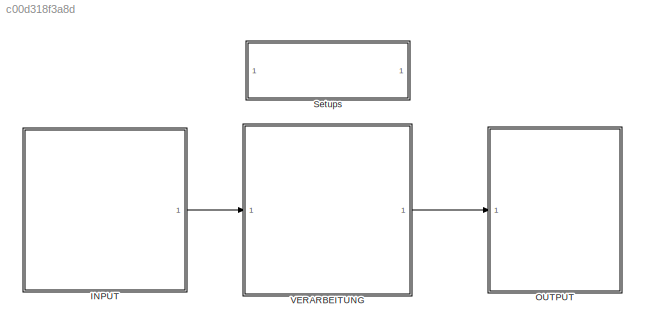
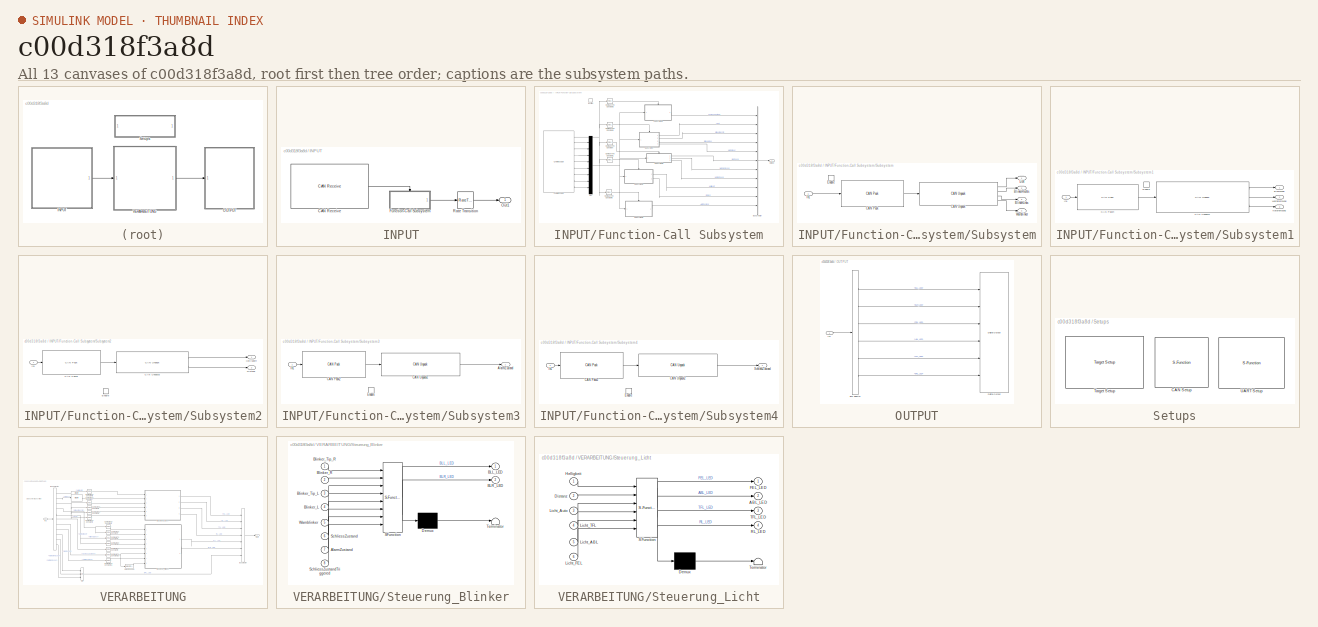
[diagram: thumbnail index - all 13 canvases of the model, root first then tree order]
MODEL slx_c00d318f3a8d
KIND model
CONFIG AbsTol = auto
CONFIG EnableMultiTasking = off
CONFIG FixedStep = auto
CONFIG MaxStep = auto
CONFIG MinStep = auto
CONFIG PreLoadFcn = waijung.modelPreload; % Required for working with Waijung Blockset. Do not remove.
CONFIG RelTol = 1e-3
CONFIG SampleTimeConstraint = Unconstrained
CONFIG Solver = FixedStepAuto
CONFIG SolverName = FixedStepAuto
CONFIG StartTime = 0.0
CONFIG StopTime = 10.0
BLOCK [SubSystem] INPUT
  Ports = [0, 1]
  RequestExecContextInheritance = off
BLOCK [Reference] INPUT/CAN Receive  REF=stm32f4_canbus_lib/CAN Receive
  Ports = [0, 1]
  SourceBlock = stm32f4_canbus_lib/CAN Receive
  SourceProductName = Waijung Blockset
  SourceType = stm32f4_can
BLOCK [SubSystem] INPUT/Function-Call Subsystem
  Ports = [0, 1, 0, 1]
  RequestExecContextInheritance = off
  TreatAsAtomicUnit = on
BLOCK [BusCreator] INPUT/Function-Call Subsystem/Bus Creator
  DisplayOption = bar
  InheritFromInputs = on
  Inputs = 11
  Ports = [11, 1]
BLOCK [Reference] INPUT/Function-Call Subsystem/CAN Message  REF=stm32f4_canbus_lib/CAN Message
  Ports = [0, 9]
  SourceBlock = stm32f4_canbus_lib/CAN Message
  SourceProductName = Waijung Blockset
  SourceType = stm32f4_can
BLOCK [Reference] INPUT/Function-Call Subsystem/Compare To Constant  REF=simulink/Logic and Bit
Operations/Compare
To Constant
  Ports = [1, 1]
  SourceBlock = simulink/Logic and Bit\nOperations/Compare\nTo Constant
  SourceProductBaseCode = SL
  SourceProductName = Simulink
  SourceType = Compare To Constant
BLOCK [Reference] INPUT/Function-Call Subsystem/Compare To Constant1  REF=simulink/Logic and Bit
Operations/Compare
To Constant
  Ports = [1, 1]
  SourceBlock = simulink/Logic and Bit\nOperations/Compare\nTo Constant
  SourceProductBaseCode = SL
  SourceProductName = Simulink
  SourceType = Compare To Constant
BLOCK [Reference] INPUT/Function-Call Subsystem/Compare To Constant3  REF=simulink/Logic and Bit
Operations/Compare
To Constant
  Ports = [1, 1]
  SourceBlock = simulink/Logic and Bit\nOperations/Compare\nTo Constant
  SourceProductBaseCode = SL
  SourceProductName = Simulink
  SourceType = Compare To Constant
BLOCK [Reference] INPUT/Function-Call Subsystem/Compare To Constant4  REF=simulink/Logic and Bit
Operations/Compare
To Constant
  Ports = [1, 1]
  SourceBlock = simulink/Logic and Bit\nOperations/Compare\nTo Constant
  SourceProductBaseCode = SL
  SourceProductName = Simulink
  SourceType = Compare To Constant
BLOCK [Reference] INPUT/Function-Call Subsystem/Compare To Constant5  REF=simulink/Logic and Bit
Operations/Compare
To Constant
  Ports = [1, 1]
  SourceBlock = simulink/Logic and Bit\nOperations/Compare\nTo Constant
  SourceProductBaseCode = SL
  SourceProductName = Simulink
  SourceType = Compare To Constant
BLOCK [Mux] INPUT/Function-Call Subsystem/Mux
  DisplayOption = bar
  Inputs = 8
  Ports = [8, 1]
BLOCK [Outport] INPUT/Function-Call Subsystem/Output
  IconDisplay = Port number
  VectorParamsAs1DForOutWhenUnconnected = off
BLOCK [SubSystem] INPUT/Function-Call Subsystem/Subsystem
  Ports = [1, 4, 1]
  RequestExecContextInheritance = off
BLOCK [Outport] INPUT/Function-Call Subsystem/Subsystem/BlinkerLinks
  IconDisplay = Port number
  Port = 3
  VectorParamsAs1DForOutWhenUnconnected = off
BLOCK [Outport] INPUT/Function-Call Subsystem/Subsystem/BlinkerRechts
  IconDisplay = Port number
  Port = 2
  VectorParamsAs1DForOutWhenUnconnected = off
BLOCK [Reference] INPUT/Function-Call Subsystem/Subsystem/CAN Pack  REF=canmsglib/CAN Pack
  Ports = [1, 1]
  SourceBlock = canmsglib/CAN Pack
  SourceProductBaseCode = XP
  SourceProductName = Simulink Real-Time
  SourceType = CAN Pack
BLOCK [Reference] INPUT/Function-Call Subsystem/Subsystem/CAN Unpack  REF=canmsglib/CAN Unpack
  Ports = [1, 4]
  SourceBlock = canmsglib/CAN Unpack
  SourceProductBaseCode = XP
  SourceProductName = Simulink Real-Time
  SourceType = CAN Unpack
BLOCK [EnablePort] INPUT/Function-Call Subsystem/Subsystem/Enable
  Ports = []
BLOCK [Inport] INPUT/Function-Call Subsystem/Subsystem/In1
  IconDisplay = Port number
BLOCK [Outport] INPUT/Function-Call Subsystem/Subsystem/Licht
  IconDisplay = Port number
  VectorParamsAs1DForOutWhenUnconnected = off
BLOCK [Outport] INPUT/Function-Call Subsystem/Subsystem/Warnblinker
  IconDisplay = Port number
  Port = 4
  VectorParamsAs1DForOutWhenUnconnected = off
BLOCK [SubSystem] INPUT/Function-Call Subsystem/Subsystem1
  Ports = [1, 3, 1]
  RequestExecContextInheritance = off
BLOCK [Outport] INPUT/Function-Call Subsystem/Subsystem1/Bremsung
  IconDisplay = Port number
  VectorParamsAs1DForOutWhenUnconnected = off
BLOCK [Reference] INPUT/Function-Call Subsystem/Subsystem1/CAN Pack4  REF=canmsglib/CAN Pack
  Ports = [1, 1]
  SourceBlock = canmsglib/CAN Pack
  SourceProductBaseCode = XP
  SourceProductName = Simulink Real-Time
  SourceType = CAN Pack
BLOCK [Reference] INPUT/Function-Call Subsystem/Subsystem1/CAN Unpack4  REF=canmsglib/CAN Unpack
  Ports = [1, 3]
  SourceBlock = canmsglib/CAN Unpack
  SourceProductBaseCode = XP
  SourceProductName = Simulink Real-Time
  SourceType = CAN Unpack
BLOCK [EnablePort] INPUT/Function-Call Subsystem/Subsystem1/Enable
  Ports = []
BLOCK [Inport] INPUT/Function-Call Subsystem/Subsystem1/In1
  IconDisplay = Port number
BLOCK [Outport] INPUT/Function-Call Subsystem/Subsystem1/Notbremsung
  IconDisplay = Port number
  Port = 3
  VectorParamsAs1DForOutWhenUnconnected = off
BLOCK [Outport] INPUT/Function-Call Subsystem/Subsystem1/Warnbremsung
  IconDisplay = Port number
  Port = 2
  VectorParamsAs1DForOutWhenUnconnected = off
BLOCK [SubSystem] INPUT/Function-Call Subsystem/Subsystem2
  Ports = [1, 2, 1]
  RequestExecContextInheritance = off
BLOCK [Reference] INPUT/Function-Call Subsystem/Subsystem2/CAN Pack3  REF=canmsglib/CAN Pack
  Ports = [1, 1]
  SourceBlock = canmsglib/CAN Pack
  SourceProductBaseCode = XP
  SourceProductName = Simulink Real-Time
  SourceType = CAN Pack
BLOCK [Reference] INPUT/Function-Call Subsystem/Subsystem2/CAN Unpack3  REF=canmsglib/CAN Unpack
  Ports = [1, 2]
  SourceBlock = canmsglib/CAN Unpack
  SourceProductBaseCode = XP
  SourceProductName = Simulink Real-Time
  SourceType = CAN Unpack
BLOCK [Outport] INPUT/Function-Call Subsystem/Subsystem2/Distanz
  IconDisplay = Port number
  Port = 2
  VectorParamsAs1DForOutWhenUnconnected = off
BLOCK [EnablePort] INPUT/Function-Call Subsystem/Subsystem2/Enable
  Ports = []
BLOCK [Outport] INPUT/Function-Call Subsystem/Subsystem2/Helligkeit
  IconDisplay = Port number
  VectorParamsAs1DForOutWhenUnconnected = off
BLOCK [Inport] INPUT/Function-Call Subsystem/Subsystem2/In1
  IconDisplay = Port number
BLOCK [SubSystem] INPUT/Function-Call Subsystem/Subsystem3
  Ports = [1, 1, 1]
  RequestExecContextInheritance = off
BLOCK [Outport] INPUT/Function-Call Subsystem/Subsystem3/AlarmZustand
  IconDisplay = Port number
  VectorParamsAs1DForOutWhenUnconnected = off
BLOCK [Reference] INPUT/Function-Call Subsystem/Subsystem3/CAN Pack2  REF=canmsglib/CAN Pack
  Ports = [1, 1]
  SourceBlock = canmsglib/CAN Pack
  SourceProductBaseCode = XP
  SourceProductName = Simulink Real-Time
  SourceType = CAN Pack
BLOCK [Reference] INPUT/Function-Call Subsystem/Subsystem3/CAN Unpack2  REF=canmsglib/CAN Unpack
  Ports = [1, 1]
  SourceBlock = canmsglib/CAN Unpack
  SourceProductBaseCode = XP
  SourceProductName = Simulink Real-Time
  SourceType = CAN Unpack
BLOCK [EnablePort] INPUT/Function-Call Subsystem/Subsystem3/Enable
  Ports = []
BLOCK [Inport] INPUT/Function-Call Subsystem/Subsystem3/In1
  IconDisplay = Port number
BLOCK [SubSystem] INPUT/Function-Call Subsystem/Subsystem4
  Ports = [1, 1, 1]
  RequestExecContextInheritance = off
BLOCK [Reference] INPUT/Function-Call Subsystem/Subsystem4/CAN Pack2  REF=canmsglib/CAN Pack
  Ports = [1, 1]
  SourceBlock = canmsglib/CAN Pack
  SourceProductBaseCode = XP
  SourceProductName = Simulink Real-Time
  SourceType = CAN Pack
BLOCK [Reference] INPUT/Function-Call Subsystem/Subsystem4/CAN Unpack2  REF=canmsglib/CAN Unpack
  Ports = [1, 1]
  SourceBlock = canmsglib/CAN Unpack
  SourceProductBaseCode = XP
  SourceProductName = Simulink Real-Time
  SourceType = CAN Unpack
BLOCK [EnablePort] INPUT/Function-Call Subsystem/Subsystem4/Enable
  Ports = []
BLOCK [Inport] INPUT/Function-Call Subsystem/Subsystem4/In1
  IconDisplay = Port number
BLOCK [Outport] INPUT/Function-Call Subsystem/Subsystem4/SchlossZustand
  IconDisplay = Port number
  VectorParamsAs1DForOutWhenUnconnected = off
BLOCK [TriggerPort] INPUT/Function-Call Subsystem/function
  Ports = []
  StatesWhenEnabling = held
  TriggerType = function-call
  VariantControl = Variant
BLOCK [Outport] INPUT/Out1
  IconDisplay = Port number
  VectorParamsAs1DForOutWhenUnconnected = off
BLOCK [RateTransition] INPUT/Rate Transition
BLOCK [SubSystem] OUTPUT
  Ports = [1]
  RequestExecContextInheritance = off
BLOCK [BusSelector] OUTPUT/Bus Selector
  OutputAsBus = off
  OutputSignals = BLL_LED,BLR_LED,FEL_LED,ABL_LED,TFL_LED,BRL_LED
  Ports = [1, 6]
BLOCK [Reference] OUTPUT/Digital Output  REF=stm32f4_io_lib/Digital Output
  Ports = [6]
  SourceBlock = stm32f4_io_lib/Digital Output
  SourceProductName = Waijung Blockset
  SourceType = stm32f4_digital_output
BLOCK [Inport] OUTPUT/In1
  IconDisplay = Port number
BLOCK [SubSystem] Setups
  Ports = []
  RequestExecContextInheritance = off
BLOCK [S-Function] Setups/CAN Setup
  EnableBusSupport = off
  FunctionName = stm32f4_can
  Parameters = conf,canmodule,0,inputarray,outputarray,'','',confstr,sampletime,sampletimestr,blockid
  Ports = []
  SFcnIsStateOwnerBlock = off
  SFunctionDeploymentMode = off
BLOCK [Reference] Setups/Target Setup  REF=stm32f4_device_config_lib/Target Setup
  Ports = []
  Priority = 100
  SourceBlock = stm32f4_device_config_lib/Target Setup
  SourceProductName = Waijung Blockset
  SourceType = stm32f4_target_setup
BLOCK [S-Function] Setups/UART Setup
  EnableBusSupport = off
  FunctionName = stm32f4_usart
  Parameters = configuration,uartmodule,transfer,baudrate,inputtype,outputtype,confstr,binheaderarray,binterminatorarray,asciiheader,asciiterminator,bindatalength,packetmode,varname,sampletime,sampletimestr,blockid
  Ports = []
  Priority = 1
  SFcnIsStateOwnerBlock = off
  SFunctionDeploymentMode = off
BLOCK [SubSystem] VERARBEITUNG
  Ports = [1, 1]
  RequestExecContextInheritance = off
BLOCK [Reference] VERARBEITUNG/Bit Shift  REF=hdlsllib/Logic and Bit
Operations/Bit Shift
  Ports = [1, 1]
  SourceBlock = hdlsllib/Logic and Bit\nOperations/Bit Shift
  SourceProductBaseCode = SL
  SourceProductName = Simulink
  SourceType = Bit Shift
BLOCK [BusCreator] VERARBEITUNG/Bus Creator
  DisplayOption = bar
  InheritFromInputs = on
  Inputs = 7
  Ports = [7, 1]
BLOCK [BusSelector] VERARBEITUNG/Bus Selector
  OutputAsBus = off
  OutputSignals = Helligkeit,Distanz,Licht,BlinkerRechts,BlinkerLinks,Warnblinker,SchlossZustand,AlarmZustand,Bremsung,Warnbremsung,Notbremsung
  Ports = [1, 11]
BLOCK [Reference] VERARBEITUNG/Compare To Constant  REF=simulink/Logic and Bit
Operations/Compare
To Constant
  Ports = [1, 1]
  SourceBlock = simulink/Logic and Bit\nOperations/Compare\nTo Constant
  SourceProductBaseCode = SL
  SourceProductName = Simulink
  SourceType = Compare To Constant
BLOCK [Reference] VERARBEITUNG/Compare To Constant1  REF=simulink/Logic and Bit
Operations/Compare
To Constant
  Ports = [1, 1]
  SourceBlock = simulink/Logic and Bit\nOperations/Compare\nTo Constant
  SourceProductBaseCode = SL
  SourceProductName = Simulink
  SourceType = Compare To Constant
BLOCK [Reference] VERARBEITUNG/Compare To Constant10  REF=simulink/Logic and Bit
Operations/Compare
To Constant
  Ports = [1, 1]
  SourceBlock = simulink/Logic and Bit\nOperations/Compare\nTo Constant
  SourceProductBaseCode = SL
  SourceProductName = Simulink
  SourceType = Compare To Constant
BLOCK [Reference] VERARBEITUNG/Compare To Constant11  REF=simulink/Logic and Bit
Operations/Compare
To Constant
  Ports = [1, 1]
  SourceBlock = simulink/Logic and Bit\nOperations/Compare\nTo Constant
  SourceProductBaseCode = SL
  SourceProductName = Simulink
  SourceType = Compare To Constant
BLOCK [Reference] VERARBEITUNG/Compare To Constant2  REF=simulink/Logic and Bit
Operations/Compare
To Constant
  Ports = [1, 1]
  SourceBlock = simulink/Logic and Bit\nOperations/Compare\nTo Constant
  SourceProductBaseCode = SL
  SourceProductName = Simulink
  SourceType = Compare To Constant
BLOCK [Reference] VERARBEITUNG/Compare To Constant3  REF=simulink/Logic and Bit
Operations/Compare
To Constant
  Ports = [1, 1]
  SourceBlock = simulink/Logic and Bit\nOperations/Compare\nTo Constant
  SourceProductBaseCode = SL
  SourceProductName = Simulink
  SourceType = Compare To Constant
BLOCK [Reference] VERARBEITUNG/Compare To Constant4  REF=simulink/Logic and Bit
Operations/Compare
To Constant
  Ports = [1, 1]
  SourceBlock = simulink/Logic and Bit\nOperations/Compare\nTo Constant
  SourceProductBaseCode = SL
  SourceProductName = Simulink
  SourceType = Compare To Constant
BLOCK [Reference] VERARBEITUNG/Compare To Constant5  REF=simulink/Logic and Bit
Operations/Compare
To Constant
  Ports = [1, 1]
  SourceBlock = simulink/Logic and Bit\nOperations/Compare\nTo Constant
  SourceProductBaseCode = SL
  SourceProductName = Simulink
  SourceType = Compare To Constant
BLOCK [Reference] VERARBEITUNG/Compare To Constant6  REF=simulink/Logic and Bit
Operations/Compare
To Constant
  Ports = [1, 1]
  SourceBlock = simulink/Logic and Bit\nOperations/Compare\nTo Constant
  SourceProductBaseCode = SL
  SourceProductName = Simulink
  SourceType = Compare To Constant
BLOCK [Reference] VERARBEITUNG/Compare To Constant7  REF=simulink/Logic and Bit
Operations/Compare
To Constant
  Ports = [1, 1]
  SourceBlock = simulink/Logic and Bit\nOperations/Compare\nTo Constant
  SourceProductBaseCode = SL
  SourceProductName = Simulink
  SourceType = Compare To Constant
BLOCK [Reference] VERARBEITUNG/Compare To Constant8  REF=simulink/Logic and Bit
Operations/Compare
To Constant
  Ports = [1, 1]
  SourceBlock = simulink/Logic and Bit\nOperations/Compare\nTo Constant
  SourceProductBaseCode = SL
  SourceProductName = Simulink
  SourceType = Compare To Constant
BLOCK [Reference] VERARBEITUNG/Compare To Constant9  REF=simulink/Logic and Bit
Operations/Compare
To Constant
  Ports = [1, 1]
  SourceBlock = simulink/Logic and Bit\nOperations/Compare\nTo Constant
  SourceProductBaseCode = SL
  SourceProductName = Simulink
  SourceType = Compare To Constant
BLOCK [Reference] VERARBEITUNG/Detect Change  REF=simulink/Logic and Bit
Operations/Detect
Change
  Ports = [1, 1]
  SourceBlock = simulink/Logic and Bit\nOperations/Detect\nChange
  SourceProductBaseCode = SL
  SourceProductName = Simulink
  SourceType = Detect Change
BLOCK [Inport] VERARBEITUNG/In1
  IconDisplay = Port number
BLOCK [Logic] VERARBEITUNG/OR
  AllPortsSameDT = off
  IconShape = distinctive
  Inputs = 3
  Operator = OR
  OutDataTypeStr = boolean
  Ports = [3, 1]
BLOCK [Outport] VERARBEITUNG/Out1
  IconDisplay = Port number
  VectorParamsAs1DForOutWhenUnconnected = off
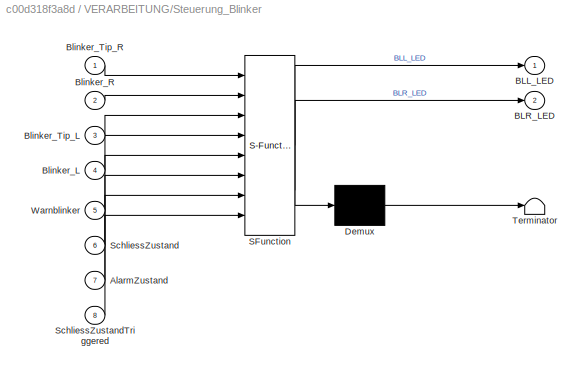
BLOCK [SubSystem] VERARBEITUNG/Steuerung_Blinker
  ErrorFcn = Stateflow.Translate.translate
  PermitHierarchicalResolution = ExplicitOnly
  Ports = [8, 2]
  RequestExecContextInheritance = off
  SFBlockType = Chart
  TreatAsAtomicUnit = on
BLOCK [Demux] VERARBEITUNG/Steuerung_Blinker/ Demux 
  Outputs = 1
  Ports = [1, 1]
BLOCK [S-Function] VERARBEITUNG/Steuerung_Blinker/ SFunction 
  EnableBusSupport = off
  FunctionName = sf_sfun
  PortCounts = [8 3]
  Ports = [8, 3]
  SFcnIsStateOwnerBlock = off
  SFunctionDeploymentMode = off
  Tag = Stateflow S-Function 3
BLOCK [Terminator] VERARBEITUNG/Steuerung_Blinker/ Terminator 
BLOCK [Inport] VERARBEITUNG/Steuerung_Blinker/AlarmZustand
  IconDisplay = Port number
  Port = 7
BLOCK [Outport] VERARBEITUNG/Steuerung_Blinker/BLL_LED
  IconDisplay = Port number
  VectorParamsAs1DForOutWhenUnconnected = off
BLOCK [Outport] VERARBEITUNG/Steuerung_Blinker/BLR_LED
  IconDisplay = Port number
  Port = 2
  VectorParamsAs1DForOutWhenUnconnected = off
BLOCK [Inport] VERARBEITUNG/Steuerung_Blinker/Blinker_L
  IconDisplay = Port number
  Port = 4
BLOCK [Inport] VERARBEITUNG/Steuerung_Blinker/Blinker_R
  IconDisplay = Port number
  Port = 2
BLOCK [Inport] VERARBEITUNG/Steuerung_Blinker/Blinker_Tip_L
  IconDisplay = Port number
  Port = 3
BLOCK [Inport] VERARBEITUNG/Steuerung_Blinker/Blinker_Tip_R
  IconDisplay = Port number
BLOCK [Inport] VERARBEITUNG/Steuerung_Blinker/SchliessZustand
  IconDisplay = Port number
  Port = 6
BLOCK [Inport] VERARBEITUNG/Steuerung_Blinker/SchliessZustandTriggered
  IconDisplay = Port number
  Port = 8
BLOCK [Inport] VERARBEITUNG/Steuerung_Blinker/Warnblinker
  IconDisplay = Port number
  Port = 5
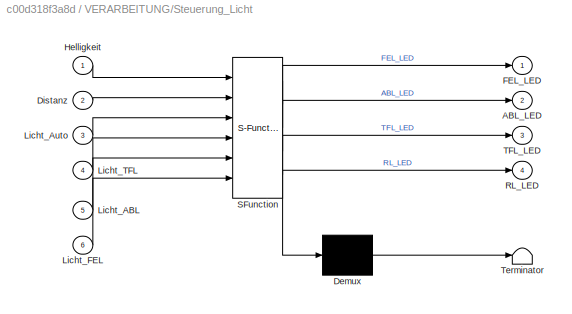
BLOCK [SubSystem] VERARBEITUNG/Steuerung_Licht
  ErrorFcn = Stateflow.Translate.translate
  PermitHierarchicalResolution = ExplicitOnly
  Ports = [6, 4]
  RequestExecContextInheritance = off
  SFBlockType = Chart
  TreatAsAtomicUnit = on
BLOCK [Demux] VERARBEITUNG/Steuerung_Licht/ Demux 
  Outputs = 1
  Ports = [1, 1]
BLOCK [S-Function] VERARBEITUNG/Steuerung_Licht/ SFunction 
  EnableBusSupport = off
  FunctionName = sf_sfun
  PortCounts = [6 5]
  Ports = [6, 5]
  SFcnIsStateOwnerBlock = off
  SFunctionDeploymentMode = off
  Tag = Stateflow S-Function 1
BLOCK [Terminator] VERARBEITUNG/Steuerung_Licht/ Terminator 
BLOCK [Outport] VERARBEITUNG/Steuerung_Licht/ABL_LED
  IconDisplay = Port number
  Port = 2
  VectorParamsAs1DForOutWhenUnconnected = off
BLOCK [Inport] VERARBEITUNG/Steuerung_Licht/Distanz
  IconDisplay = Port number
  Port = 2
BLOCK [Outport] VERARBEITUNG/Steuerung_Licht/FEL_LED
  IconDisplay = Port number
  VectorParamsAs1DForOutWhenUnconnected = off
BLOCK [Inport] VERARBEITUNG/Steuerung_Licht/Helligkeit
  IconDisplay = Port number
BLOCK [Inport] VERARBEITUNG/Steuerung_Licht/Licht_ABL
  IconDisplay = Port number
  Port = 5
BLOCK [Inport] VERARBEITUNG/Steuerung_Licht/Licht_Auto
  IconDisplay = Port number
  Port = 3
BLOCK [Inport] VERARBEITUNG/Steuerung_Licht/Licht_FEL
  IconDisplay = Port number
  Port = 6
BLOCK [Inport] VERARBEITUNG/Steuerung_Licht/Licht_TFL
  IconDisplay = Port number
  Port = 4
BLOCK [Outport] VERARBEITUNG/Steuerung_Licht/RL_LED
  IconDisplay = Port number
  Port = 4
BLOCK [Outport] VERARBEITUNG/Steuerung_Licht/TFL_LED
  IconDisplay = Port number
  Port = 3
  VectorParamsAs1DForOutWhenUnconnected = off
ANNOTATION VERARBEITUNG: Distanz: Richtig geshiftet?
LINE INPUT/CAN Receive:1 -> INPUT/Function-Call Subsystem:trigger
LINE INPUT/Function-Call Subsystem/Bus Creator:1 -> INPUT/Function-Call Subsystem/Output:1
NET INPUT/Function-Call Subsystem/CAN Message:1 -> INPUT/Function-Call Subsystem/Compare To Constant1:1, INPUT/Function-Call Subsystem/Compare To Constant3:1, INPUT/Function-Call Subsystem/Compare To Constant4:1, INPUT/Function-Call Subsystem/Compare To Constant5:1, INPUT/Function-Call Subsystem/Compare To Constant:1
LINE INPUT/Function-Call Subsystem/CAN Message:2 -> INPUT/Function-Call Subsystem/Mux:1
LINE INPUT/Function-Call Subsystem/CAN Message:3 -> INPUT/Function-Call Subsystem/Mux:2
LINE INPUT/Function-Call Subsystem/CAN Message:4 -> INPUT/Function-Call Subsystem/Mux:3
LINE INPUT/Function-Call Subsystem/CAN Message:5 -> INPUT/Function-Call Subsystem/Mux:4
LINE INPUT/Function-Call Subsystem/CAN Message:6 -> INPUT/Function-Call Subsystem/Mux:5
LINE INPUT/Function-Call Subsystem/CAN Message:7 -> INPUT/Function-Call Subsystem/Mux:6
LINE INPUT/Function-Call Subsystem/CAN Message:8 -> INPUT/Function-Call Subsystem/Mux:7
LINE INPUT/Function-Call Subsystem/CAN Message:9 -> INPUT/Function-Call Subsystem/Mux:8
LINE INPUT/Function-Call Subsystem/Compare To Constant1:1 -> INPUT/Function-Call Subsystem/Subsystem2:enable
LINE INPUT/Function-Call Subsystem/Compare To Constant3:1 -> INPUT/Function-Call Subsystem/Subsystem4:enable
LINE INPUT/Function-Call Subsystem/Compare To Constant4:1 -> INPUT/Function-Call Subsystem/Subsystem:enable
LINE INPUT/Function-Call Subsystem/Compare To Constant5:1 -> INPUT/Function-Call Subsystem/Subsystem3:enable
LINE INPUT/Function-Call Subsystem/Compare To Constant:1 -> INPUT/Function-Call Subsystem/Subsystem1:enable
NET INPUT/Function-Call Subsystem/Mux:1 -> INPUT/Function-Call Subsystem/Subsystem1:1, INPUT/Function-Call Subsystem/Subsystem2:1, INPUT/Function-Call Subsystem/Subsystem3:1, INPUT/Function-Call Subsystem/Subsystem4:1, INPUT/Function-Call Subsystem/Subsystem:1
LINE INPUT/Function-Call Subsystem/Subsystem/CAN Pack:1 -> INPUT/Function-Call Subsystem/Subsystem/CAN Unpack:1
LINE INPUT/Function-Call Subsystem/Subsystem/CAN Unpack:1 -> INPUT/Function-Call Subsystem/Subsystem/Licht:1
LINE INPUT/Function-Call Subsystem/Subsystem/CAN Unpack:2 -> INPUT/Function-Call Subsystem/Subsystem/BlinkerRechts:1
LINE INPUT/Function-Call Subsystem/Subsystem/CAN Unpack:3 -> INPUT/Function-Call Subsystem/Subsystem/BlinkerLinks:1
LINE INPUT/Function-Call Subsystem/Subsystem/CAN Unpack:4 -> INPUT/Function-Call Subsystem/Subsystem/Warnblinker:1
LINE INPUT/Function-Call Subsystem/Subsystem/In1:1 -> INPUT/Function-Call Subsystem/Subsystem/CAN Pack:1
LINE INPUT/Function-Call Subsystem/Subsystem1/CAN Pack4:1 -> INPUT/Function-Call Subsystem/Subsystem1/CAN Unpack4:1
LINE INPUT/Function-Call Subsystem/Subsystem1/CAN Unpack4:1 -> INPUT/Function-Call Subsystem/Subsystem1/Bremsung:1
LINE INPUT/Function-Call Subsystem/Subsystem1/CAN Unpack4:2 -> INPUT/Function-Call Subsystem/Subsystem1/Warnbremsung:1
LINE INPUT/Function-Call Subsystem/Subsystem1/CAN Unpack4:3 -> INPUT/Function-Call Subsystem/Subsystem1/Notbremsung:1
LINE INPUT/Function-Call Subsystem/Subsystem1/In1:1 -> INPUT/Function-Call Subsystem/Subsystem1/CAN Pack4:1
LINE INPUT/Function-Call Subsystem/Subsystem1:1 -> INPUT/Function-Call Subsystem/Bus Creator:6
LINE INPUT/Function-Call Subsystem/Subsystem1:2 -> INPUT/Function-Call Subsystem/Bus Creator:7
LINE INPUT/Function-Call Subsystem/Subsystem1:3 -> INPUT/Function-Call Subsystem/Bus Creator:8
LINE INPUT/Function-Call Subsystem/Subsystem2/CAN Pack3:1 -> INPUT/Function-Call Subsystem/Subsystem2/CAN Unpack3:1
LINE INPUT/Function-Call Subsystem/Subsystem2/CAN Unpack3:1 -> INPUT/Function-Call Subsystem/Subsystem2/Helligkeit:1
LINE INPUT/Function-Call Subsystem/Subsystem2/CAN Unpack3:2 -> INPUT/Function-Call Subsystem/Subsystem2/Distanz:1
LINE INPUT/Function-Call Subsystem/Subsystem2/In1:1 -> INPUT/Function-Call Subsystem/Subsystem2/CAN Pack3:1
LINE INPUT/Function-Call Subsystem/Subsystem2:1 -> INPUT/Function-Call Subsystem/Bus Creator:9
LINE INPUT/Function-Call Subsystem/Subsystem2:2 -> INPUT/Function-Call Subsystem/Bus Creator:10
LINE INPUT/Function-Call Subsystem/Subsystem3/CAN Pack2:1 -> INPUT/Function-Call Subsystem/Subsystem3/CAN Unpack2:1
LINE INPUT/Function-Call Subsystem/Subsystem3/CAN Unpack2:1 -> INPUT/Function-Call Subsystem/Subsystem3/AlarmZustand:1
LINE INPUT/Function-Call Subsystem/Subsystem3/In1:1 -> INPUT/Function-Call Subsystem/Subsystem3/CAN Pack2:1
LINE INPUT/Function-Call Subsystem/Subsystem3:1 -> INPUT/Function-Call Subsystem/Bus Creator:11
LINE INPUT/Function-Call Subsystem/Subsystem4/CAN Pack2:1 -> INPUT/Function-Call Subsystem/Subsystem4/CAN Unpack2:1
LINE INPUT/Function-Call Subsystem/Subsystem4/CAN Unpack2:1 -> INPUT/Function-Call Subsystem/Subsystem4/SchlossZustand:1
LINE INPUT/Function-Call Subsystem/Subsystem4/In1:1 -> INPUT/Function-Call Subsystem/Subsystem4/CAN Pack2:1
LINE INPUT/Function-Call Subsystem/Subsystem4:1 -> INPUT/Function-Call Subsystem/Bus Creator:1
LINE INPUT/Function-Call Subsystem/Subsystem:1 -> INPUT/Function-Call Subsystem/Bus Creator:2
LINE INPUT/Function-Call Subsystem/Subsystem:2 -> INPUT/Function-Call Subsystem/Bus Creator:3
LINE INPUT/Function-Call Subsystem/Subsystem:3 -> INPUT/Function-Call Subsystem/Bus Creator:4
LINE INPUT/Function-Call Subsystem/Subsystem:4 -> INPUT/Function-Call Subsystem/Bus Creator:5
LINE INPUT/Function-Call Subsystem:1 -> INPUT/Rate Transition:1
LINE INPUT/Rate Transition:1 -> INPUT/Out1:1
LINE INPUT:1 -> VERARBEITUNG:1
LINE OUTPUT/Bus Selector:1 -> OUTPUT/Digital Output:1
LINE OUTPUT/Bus Selector:2 -> OUTPUT/Digital Output:2
LINE OUTPUT/Bus Selector:3 -> OUTPUT/Digital Output:3
LINE OUTPUT/Bus Selector:4 -> OUTPUT/Digital Output:4
LINE OUTPUT/Bus Selector:5 -> OUTPUT/Digital Output:5
LINE OUTPUT/Bus Selector:6 -> OUTPUT/Digital Output:6
LINE OUTPUT/In1:1 -> OUTPUT/Bus Selector:1
LINE VERARBEITUNG/Bit Shift:1 -> VERARBEITUNG/Steuerung_Licht:2
LINE VERARBEITUNG/Bus Creator:1 -> VERARBEITUNG/Out1:1
LINE VERARBEITUNG/Bus Selector:1 -> VERARBEITUNG/Compare To Constant8:1
LINE VERARBEITUNG/Bus Selector:10 -> VERARBEITUNG/OR:2
LINE VERARBEITUNG/Bus Selector:11 -> VERARBEITUNG/OR:3
LINE VERARBEITUNG/Bus Selector:2 -> VERARBEITUNG/Bit Shift:1
NET VERARBEITUNG/Bus Selector:3 -> VERARBEITUNG/Compare To Constant1:1, VERARBEITUNG/Compare To Constant2:1, VERARBEITUNG/Compare To Constant3:1, VERARBEITUNG/Compare To Constant:1
NET VERARBEITUNG/Bus Selector:4 -> VERARBEITUNG/Compare To Constant6:1, VERARBEITUNG/Compare To Constant7:1
NET VERARBEITUNG/Bus Selector:5 -> VERARBEITUNG/Compare To Constant4:1, VERARBEITUNG/Compare To Constant5:1
LINE VERARBEITUNG/Bus Selector:6 -> VERARBEITUNG/Compare To Constant9:1
LINE VERARBEITUNG/Bus Selector:7 -> VERARBEITUNG/Compare To Constant10:1
LINE VERARBEITUNG/Bus Selector:8 -> VERARBEITUNG/Compare To Constant11:1
LINE VERARBEITUNG/Bus Selector:9 -> VERARBEITUNG/OR:1
NET VERARBEITUNG/Compare To Constant10:1 -> VERARBEITUNG/Detect Change:1, VERARBEITUNG/Steuerung_Blinker:6
LINE VERARBEITUNG/Compare To Constant11:1 -> VERARBEITUNG/Steuerung_Blinker:7
LINE VERARBEITUNG/Compare To Constant1:1 -> VERARBEITUNG/Steuerung_Licht:4
LINE VERARBEITUNG/Compare To Constant2:1 -> VERARBEITUNG/Steuerung_Licht:5
LINE VERARBEITUNG/Compare To Constant3:1 -> VERARBEITUNG/Steuerung_Licht:6
LINE VERARBEITUNG/Compare To Constant4:1 -> VERARBEITUNG/Steuerung_Blinker:3
LINE VERARBEITUNG/Compare To Constant5:1 -> VERARBEITUNG/Steuerung_Blinker:4
LINE VERARBEITUNG/Compare To Constant6:1 -> VERARBEITUNG/Steuerung_Blinker:1
LINE VERARBEITUNG/Compare To Constant7:1 -> VERARBEITUNG/Steuerung_Blinker:2
LINE VERARBEITUNG/Compare To Constant8:1 -> VERARBEITUNG/Steuerung_Licht:1
LINE VERARBEITUNG/Compare To Constant9:1 -> VERARBEITUNG/Steuerung_Blinker:5
LINE VERARBEITUNG/Compare To Constant:1 -> VERARBEITUNG/Steuerung_Licht:3
LINE VERARBEITUNG/Detect Change:1 -> VERARBEITUNG/Steuerung_Blinker:8
LINE VERARBEITUNG/In1:1 -> VERARBEITUNG/Bus Selector:1
LINE VERARBEITUNG/OR:1 -> VERARBEITUNG/Bus Creator:7
LINE VERARBEITUNG/Steuerung_Blinker:1 -> VERARBEITUNG/Bus Creator:5
LINE VERARBEITUNG/Steuerung_Blinker:2 -> VERARBEITUNG/Bus Creator:6
LINE VERARBEITUNG/Steuerung_Licht:1 -> VERARBEITUNG/Bus Creator:1
LINE VERARBEITUNG/Steuerung_Licht:2 -> VERARBEITUNG/Bus Creator:2
LINE VERARBEITUNG/Steuerung_Licht:3 -> VERARBEITUNG/Bus Creator:3
LINE VERARBEITUNG/Steuerung_Licht:4 -> VERARBEITUNG/Bus Creator:4
LINE VERARBEITUNG:1 -> OUTPUT:1
note: NET lines group one-source signal fan-out (src -> all destinations, sorted); 1:1 wires keep LINE
CHART VERARBEITUNG/Steuerung_Licht states=9 transitions=15
  STATE_LABEL 'State_Licht_ABL\nentry:\nFEL_LED=false;\nABL_LED=true;\nTFL_LED=false;\nRL_LED = true'
  STATE_LABEL 'State_Licht_Auto\n'
  STATE_LABEL 'Dunkel\nentry: RL_LED = true'
  STATE_LABEL 'Gegenverkehr_nein\nentry:\nFEL_LED=true;\nABL_LED=false;\nTFL_LED=false;'
  STATE_LABEL 'Gegenverkehr_Ja\nentry:\nFEL_LED=false;\nABL_LED=true;\nTFL_LED=false;'
  STATE_LABEL '[Distanz < 250]'
  STATE_LABEL '[Distanz > 250]'
  STATE_LABEL 'Hell\nentry:\nFEL_LED = false;\nABL_LED = false;\nTFL_LED = true;\nRL_LED = false'
  STATE_LABEL '[Helligkeit == 1]'
  STATE_LABEL '[Helligkeit == 0]'
  STATE_LABEL 'Dunkel\nentry: RL_LED = true'
  STATE_LABEL 'Gegenverkehr_nein\nentry:\nFEL_LED=true;\nABL_LED=false;\nTFL_LED=false;'
  STATE_LABEL 'Gegenverkehr_Ja\nentry:\nFEL_LED=false;\nABL_LED=true;\nTFL_LED=false;'
  STATE_LABEL '[Distanz < 250]'
  STATE_LABEL '[Distanz > 250]'
  STATE_LABEL 'Gegenverkehr_nein\nentry:\nFEL_LED=true;\nABL_LED=false;\nTFL_LED=false;'
  STATE_LABEL 'Gegenverkehr_Ja\nentry:\nFEL_LED=false;\nABL_LED=true;\nTFL_LED=false;'
  STATE_LABEL 'Hell\nentry:\nFEL_LED = false;\nABL_LED = false;\nTFL_LED = true;\nRL_LED = false'
  STATE_LABEL 'State_OFF\nentry:\nFEL_LED=false;\nABL_LED=false;\nTFL_LED=false;'
  STATE_LABEL 'State_Licht_FEL\nentry:\nFEL_LED=true;\nABL_LED=false;\nTFL_LED=false;\nRL_LED = true'
  STATE_LABEL 'State_Licht_TFL\nentry:\nFEL_LED=false;\nABL_LED=false;\nTFL_LED=true;\nRL_LED = false'
CHART VERARBEITUNG/Steuerung_Blinker states=11 transitions=17
  STATE_LABEL 'State_Blinker_Bedienung'
  STATE_LABEL 'State_OFF\nen, du:\nBlinker_Aktiv = false'
  STATE_LABEL 'State_Blinken_Rechts\nen, du:\nRechte_Seite_an = true\nLinke_Seite_an = false\nBlink_Frequenz =0.5\nBlinker_Aktiv = true\n'
  STATE_LABEL 'State_Blinken_Links\nen, du:\nRechte_Seite_an = false\nLinke_Seite_an = true\nBlink_Frequenz =0.5\nBlinker_Aktiv = true\n'
  STATE_LABEL 'State_Warnblinken\nen, du:\nRechte_Seite_an = true\nLinke_Seite_an = true\nBlink_Frequenz =0.5\nBlinker_Aktiv = true\n'
  STATE_LABEL 'State_Alarmblinken\nen, du:\nRechte_Seite_an = true\nLinke_Seite_an = true\nBlink_Frequenz =0.25\nBlinker_Aktiv = true'
  STATE_LABEL 'State_Komfort_Links\nen, du:\nRechte_Seite_an = false\nLinke_Seite_an = true\nBlink_Frequenz =0.5\nBlinker_Aktiv = true\nblink_count = 2\nflag = true\n'
  STATE_LABEL 'State_Komfort_Rechts\nen, du:\nRechte_Seite_an = true\nLinke_Seite_an = false\nBlink_Frequenz =0.5\nBlinker_Aktiv = true\nblink_count = 2\nflag = false\n'
  STATE_LABEL 'State_Blinker_Oeffnen_Schliessen\n\nen, du: Rechte_Seite_an = true\n Linke_Seite_an = true\n Blink_Frequenz =0.5\n if SchliessZustand == true\n     blink_count = 1\n end\n Blinker_Aktiv = true\n'
  STATE_LABEL '[Blinker_R]'
  STATE_LABEL '[Blinker_L]'
  STATE_LABEL '[Warnblinker]'
  STATE_LABEL '[AlarmZustand]'
  STATE_LABEL '[Blinker_Tip_L]'
  STATE_LABEL '[Blinker_Tip_R]'
  STATE_LABEL '[SchliessZustandTriggered]'
  STATE_LABEL 'State_OFF\nen, du:\nBlinker_Aktiv = false'
  STATE_LABEL 'State_Blinken_Rechts\nen, du:\nRechte_Seite_an = true\nLinke_Seite_an = false\nBlink_Frequenz =0.5\nBlinker_Aktiv = true\n'
  STATE_LABEL 'State_Blinken_Links\nen, du:\nRechte_Seite_an = false\nLinke_Seite_an = true\nBlink_Frequenz =0.5\nBlinker_Aktiv = true\n'
  STATE_LABEL 'State_Warnblinken\nen, du:\nRechte_Seite_an = true\nLinke_Seite_an = true\nBlink_Frequenz =0.5\nBlinker_Aktiv = true\n'
  STATE_LABEL 'State_Alarmblinken\nen, du:\nRechte_Seite_an = true\nLinke_Seite_an = true\nBlink_Frequenz =0.25\nBlinker_Aktiv = true'
  STATE_LABEL 'State_Komfort_Links\nen, du:\nRechte_Seite_an = false\nLinke_Seite_an = true\nBlink_Frequenz =0.5\nBlinker_Aktiv = true\nblink_count = 2\nflag = true\n'
  STATE_LABEL 'State_Komfort_Rechts\nen, du:\nRechte_Seite_an = true\nLinke_Seite_an = false\nBlink_Frequenz =0.5\nBlinker_Aktiv = true\nblink_count = 2\nflag = false\n'
  STATE_LABEL 'State_Blinker_Oeffnen_Schliessen\n\nen, du: Rechte_Seite_an = true\n Linke_Seite_an = true\n Blink_Frequenz =0.5\n if SchliessZustand == true\n     blink_count = 1\n end\n Blinker_Aktiv = true\n'
  STATE_LABEL 'State_Blinker_ON\nen, du:\nBLL_LED=Linke_Seite_an\nBLR_LED=Rechte_Seite_an\n'
  STATE_LABEL 'State_Blinker_OFF\nen, du:\nBLL_LED=false\nBLR_LED=false\nif flag == true\n    BlinkerLinks = true\nend\nif flag == false\n    BlinkerRechts = true\nend'
